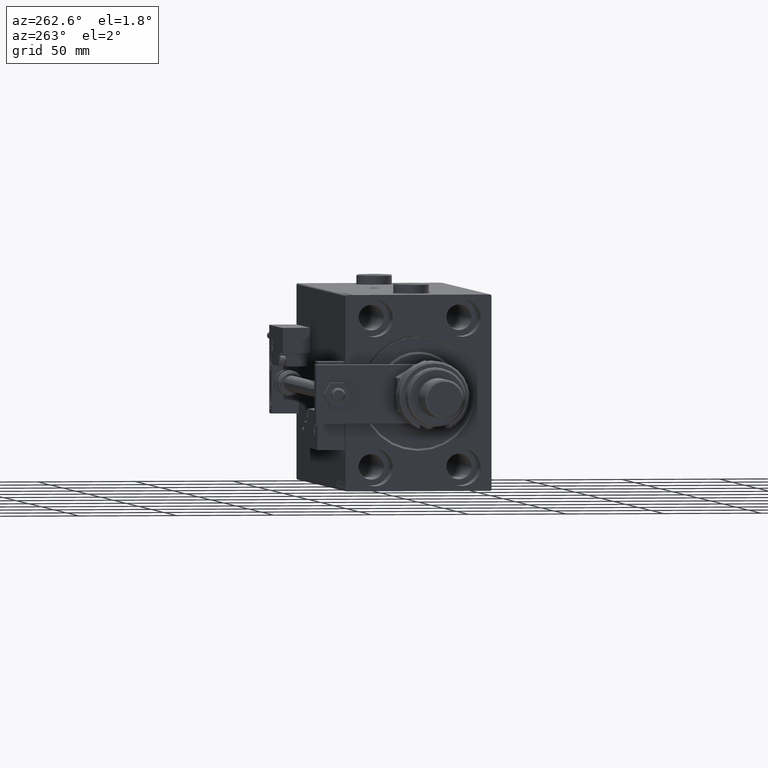
[diagram: clean part render]
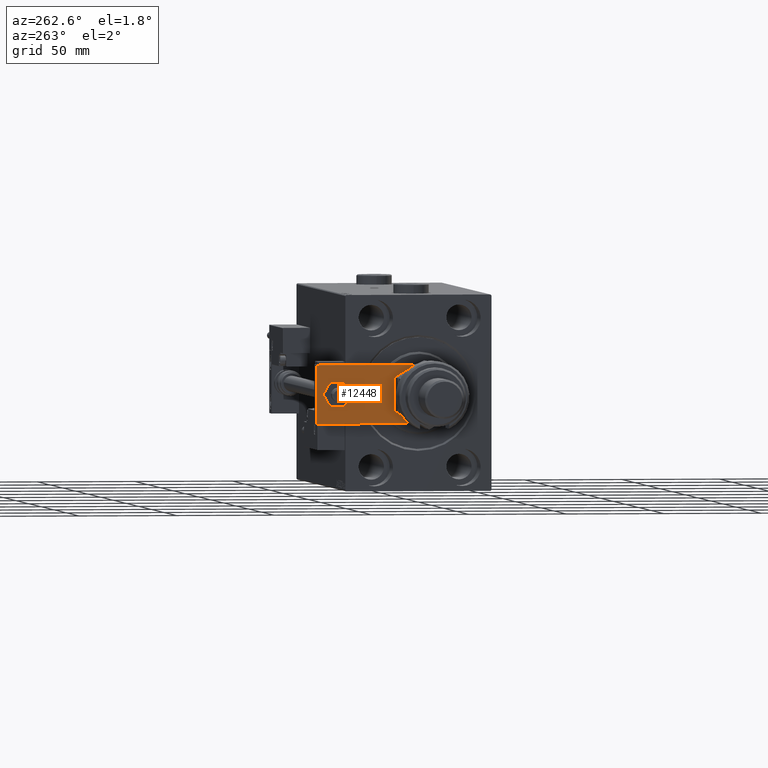
[diagram: same view with one face highlighted and labeled with its STEP entity id]
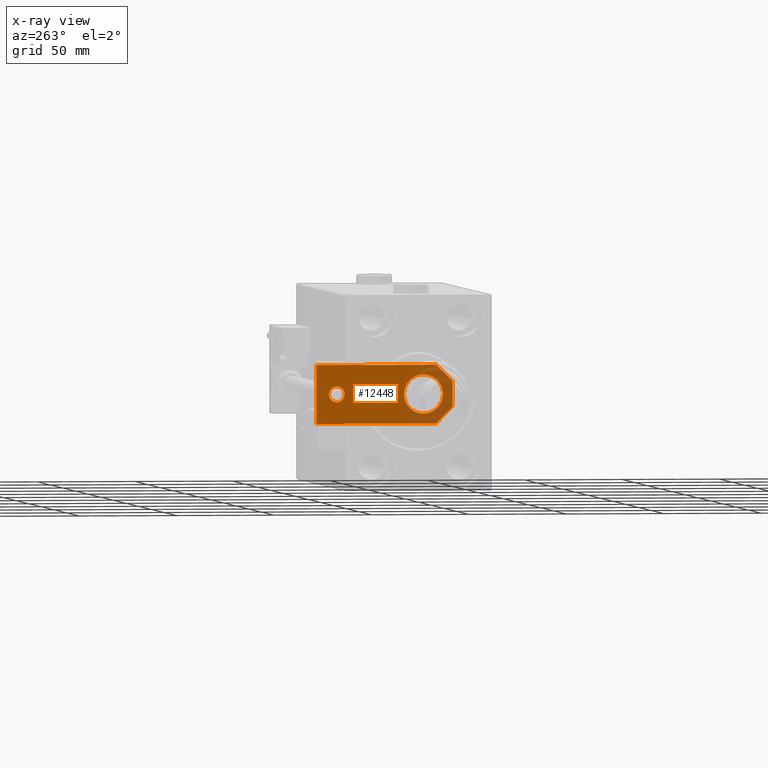
[diagram: x-ray of the same camera — body ghosted, the highlighted face saturated]
A machine part, auxiliary view. The second image highlights one B-rep face of the part: STEP entity #12448.
The next image is the same camera in x-ray: the body ghosted, the highlighted face saturated — about 20% of this face is hidden behind the body in this view.
In plain terms, the highlighted planar face has unit normal (-1, 0, 0).
Its self-contained STEP definition (entity closure, byte-faithful):
#206 = FACE_BOUND ( 'NONE', #33825, .T. ) ;
#476 = DIRECTION ( 'NONE',  ( 1.000000000000000000, 0.000000000000000000, 0.000000000000000000 ) ) ;
#631 = CARTESIAN_POINT ( 'NONE',  ( -4.000000000000000888, 59.50000000000001421, 8.000000000000000000 ) ) ;
#657 = CARTESIAN_POINT ( 'NONE',  ( -14.99999999999999822, 70.00000000000000000, 8.000000000000000000 ) ) ;
#1752 = DIRECTION ( 'NONE',  ( 1.000000000000000000, 0.000000000000000000, 0.000000000000000000 ) ) ;
#2687 = EDGE_CURVE ( 'NONE', #9271, #4120, #23090, .T. ) ;
#3252 = AXIS2_PLACEMENT_3D ( 'NONE', #47149, #37814, #4994 ) ;
#3739 = CARTESIAN_POINT ( 'NONE',  ( -15.00000000000000355, 0.000000000000000000, 8.000000000000000000 ) ) ;
#4077 = CARTESIAN_POINT ( 'NONE',  ( 15.00000000000000355, 8.500000000000007105, 8.000000000000000000 ) ) ;
#4120 = VERTEX_POINT ( 'NONE', #46365 ) ;
#4349 = FACE_BOUND ( 'NONE', #21131, .T. ) ;
#4994 = DIRECTION ( 'NONE',  ( 1.000000000000000000, 0.000000000000000000, 0.000000000000000000 ) ) ;
#5659 = VECTOR ( 'NONE', #34212, 1000.000000000000000 ) ;
#5896 = VERTEX_POINT ( 'NONE', #631 ) ;
#6900 = CIRCLE ( 'NONE', #28889, 4.000000000000000888 ) ;
#7697 = ORIENTED_EDGE ( 'NONE', *, *, #21946, .F. ) ;
#8794 = VECTOR ( 'NONE', #15110, 1000.000000000000000 ) ;
#9185 = DIRECTION ( 'NONE',  ( 0.000000000000000000, 0.000000000000000000, 1.000000000000000000 ) ) ;
#9271 = VERTEX_POINT ( 'NONE', #38758 ) ;
#9415 = CIRCLE ( 'NONE', #14718, 10.00000000000000178 ) ;
#10365 = VERTEX_POINT ( 'NONE', #657 ) ;
#11531 = ORIENTED_EDGE ( 'NONE', *, *, #50227, .T. ) ;
#11889 = LINE ( 'NONE', #32323, #30294 ) ;
#12347 = VERTEX_POINT ( 'NONE', #4077 ) ;
#12448 = ADVANCED_FACE ( 'NONE', ( #4349, #37988, #206 ), #21424, .T. ) ;
#14718 = AXIS2_PLACEMENT_3D ( 'NONE', #22687, #9185, #1752 ) ;
#14809 = EDGE_CURVE ( 'NONE', #41838, #5896, #47188, .T. ) ;
#15083 = CIRCLE ( 'NONE', #52924, 10.00000000000000178 ) ;
#15110 = DIRECTION ( 'NONE',  ( -4.956352788505162775E-17, 1.000000000000000000, 0.000000000000000000 ) ) ;
#15790 = EDGE_CURVE ( 'NONE', #48649, #54435, #9415, .T. ) ;
#17007 = DIRECTION ( 'NONE',  ( -0.000000000000000000, 0.000000000000000000, 1.000000000000000000 ) ) ;
#18946 = VERTEX_POINT ( 'NONE', #20844 ) ;
#19426 = CARTESIAN_POINT ( 'NONE',  ( 6.499999999999974243, 0.000000000000000000, 8.000000000000000000 ) ) ;
#20082 = LINE ( 'NONE', #45154, #8794 ) ;
#20844 = CARTESIAN_POINT ( 'NONE',  ( 15.00000000000000000, 70.00000000000000000, 8.000000000000000000 ) ) ;
#21131 = EDGE_LOOP ( 'NONE', ( #7697, #53452 ) ) ;
#21424 = PLANE ( 'NONE',  #35677 ) ;
#21515 = CARTESIAN_POINT ( 'NONE',  ( -14.99999999999999822, 70.00000000000000000, 8.000000000000000000 ) ) ;
#21946 = EDGE_CURVE ( 'NONE', #5896, #41838, #6900, .T. ) ;
#22288 = ORIENTED_EDGE ( 'NONE', *, *, #40624, .T. ) ;
#22687 = CARTESIAN_POINT ( 'NONE',  ( -9.629649721936179265E-32, 15.00000000000001066, 8.000000000000000000 ) ) ;
#23090 = LINE ( 'NONE', #26958, #32169 ) ;
#23443 = CARTESIAN_POINT ( 'NONE',  ( 3.249999999999979128, -3.249999999999987121, 8.000000000000000000 ) ) ;
#24741 = CARTESIAN_POINT ( 'NONE',  ( -9.629649721936179265E-32, 15.00000000000001066, 8.000000000000000000 ) ) ;
#24782 = EDGE_CURVE ( 'NONE', #47491, #12347, #48512, .T. ) ;
#26958 = CARTESIAN_POINT ( 'NONE',  ( -3.250000000000003553, -3.249999999999996891, 8.000000000000000000 ) ) ;
#28889 = AXIS2_PLACEMENT_3D ( 'NONE', #33114, #41642, #53752 ) ;
#29188 = EDGE_LOOP ( 'NONE', ( #11531, #46766, #22288, #29545, #29310, #32122 ) ) ;
#29310 = ORIENTED_EDGE ( 'NONE', *, *, #38059, .T. ) ;
#29545 = ORIENTED_EDGE ( 'NONE', *, *, #24782, .T. ) ;
#30294 = VECTOR ( 'NONE', #45504, 1000.000000000000000 ) ;
#30640 = DIRECTION ( 'NONE',  ( 0.7071067811865483499, 0.7071067811865465735, -0.000000000000000000 ) ) ;
#31113 = CARTESIAN_POINT ( 'NONE',  ( 10.00000000000000178, 15.00000000000001243, 8.000000000000000000 ) ) ;
#31810 = ORIENTED_EDGE ( 'NONE', *, *, #43917, .F. ) ;
#32122 = ORIENTED_EDGE ( 'NONE', *, *, #49965, .T. ) ;
#32169 = VECTOR ( 'NONE', #52838, 1000.000000000000000 ) ;
#32323 = CARTESIAN_POINT ( 'NONE',  ( 15.00000000000000000, 70.00000000000000000, 8.000000000000000000 ) ) ;
#32491 = DIRECTION ( 'NONE',  ( 1.000000000000000000, 0.000000000000000000, 0.000000000000000000 ) ) ;
#33114 = CARTESIAN_POINT ( 'NONE',  ( -1.432611055310774642E-16, 59.50000000000001421, 8.000000000000000000 ) ) ;
#33825 = EDGE_LOOP ( 'NONE', ( #31810, #52778 ) ) ;
#34212 = DIRECTION ( 'NONE',  ( -7.434529182757744162E-17, -1.000000000000000000, 0.000000000000000000 ) ) ;
#35677 = AXIS2_PLACEMENT_3D ( 'NONE', #38259, #17007, #476 ) ;
#37814 = DIRECTION ( 'NONE',  ( 0.000000000000000000, 0.000000000000000000, 1.000000000000000000 ) ) ;
#37841 = VECTOR ( 'NONE', #30640, 1000.000000000000114 ) ;
#37924 = DIRECTION ( 'NONE',  ( 1.000000000000000000, 0.000000000000000000, 0.000000000000000000 ) ) ;
#37988 = FACE_OUTER_BOUND ( 'NONE', #29188, .T. ) ;
#38059 = EDGE_CURVE ( 'NONE', #12347, #18946, #20082, .T. ) ;
#38085 = LINE ( 'NONE', #21515, #5659 ) ;
#38259 = CARTESIAN_POINT ( 'NONE',  ( 0.000000000000000000, 0.000000000000000000, 8.000000000000000000 ) ) ;
#38758 = CARTESIAN_POINT ( 'NONE',  ( -15.00000000000000355, 8.500000000000028422, 8.000000000000000000 ) ) ;
#40624 = EDGE_CURVE ( 'NONE', #4120, #47491, #45897, .T. ) ;
#40919 = CARTESIAN_POINT ( 'NONE',  ( 4.000000000000000888, 59.50000000000001421, 8.000000000000000000 ) ) ;
#41642 = DIRECTION ( 'NONE',  ( 0.000000000000000000, 0.000000000000000000, 1.000000000000000000 ) ) ;
#41838 = VERTEX_POINT ( 'NONE', #40919 ) ;
#43917 = EDGE_CURVE ( 'NONE', #54435, #48649, #15083, .T. ) ;
#44008 = CARTESIAN_POINT ( 'NONE',  ( -10.00000000000000178, 15.00000000000001066, 8.000000000000000000 ) ) ;
#45154 = CARTESIAN_POINT ( 'NONE',  ( 15.00000000000000355, 0.000000000000000000, 8.000000000000000000 ) ) ;
#45504 = DIRECTION ( 'NONE',  ( -1.000000000000000000, 0.000000000000000000, 0.000000000000000000 ) ) ;
#45676 = DIRECTION ( 'NONE',  ( 0.000000000000000000, 0.000000000000000000, 1.000000000000000000 ) ) ;
#45897 = LINE ( 'NONE', #3739, #45898 ) ;
#45898 = VECTOR ( 'NONE', #37924, 1000.000000000000000 ) ;
#46365 = CARTESIAN_POINT ( 'NONE',  ( -6.499999999999993783, 0.000000000000000000, 8.000000000000000000 ) ) ;
#46766 = ORIENTED_EDGE ( 'NONE', *, *, #2687, .T. ) ;
#47149 = CARTESIAN_POINT ( 'NONE',  ( -1.432611055310774642E-16, 59.50000000000001421, 8.000000000000000000 ) ) ;
#47188 = CIRCLE ( 'NONE', #3252, 4.000000000000000888 ) ;
#47491 = VERTEX_POINT ( 'NONE', #19426 ) ;
#48512 = LINE ( 'NONE', #23443, #37841 ) ;
#48649 = VERTEX_POINT ( 'NONE', #31113 ) ;
#49965 = EDGE_CURVE ( 'NONE', #18946, #10365, #11889, .T. ) ;
#50227 = EDGE_CURVE ( 'NONE', #10365, #9271, #38085, .T. ) ;
#52778 = ORIENTED_EDGE ( 'NONE', *, *, #15790, .F. ) ;
#52838 = DIRECTION ( 'NONE',  ( 0.7071067811865467956, -0.7071067811865483499, 0.000000000000000000 ) ) ;
#52924 = AXIS2_PLACEMENT_3D ( 'NONE', #24741, #45676, #32491 ) ;
#53452 = ORIENTED_EDGE ( 'NONE', *, *, #14809, .F. ) ;
#53752 = DIRECTION ( 'NONE',  ( 1.000000000000000000, 0.000000000000000000, 0.000000000000000000 ) ) ;
#54435 = VERTEX_POINT ( 'NONE', #44008 ) ;